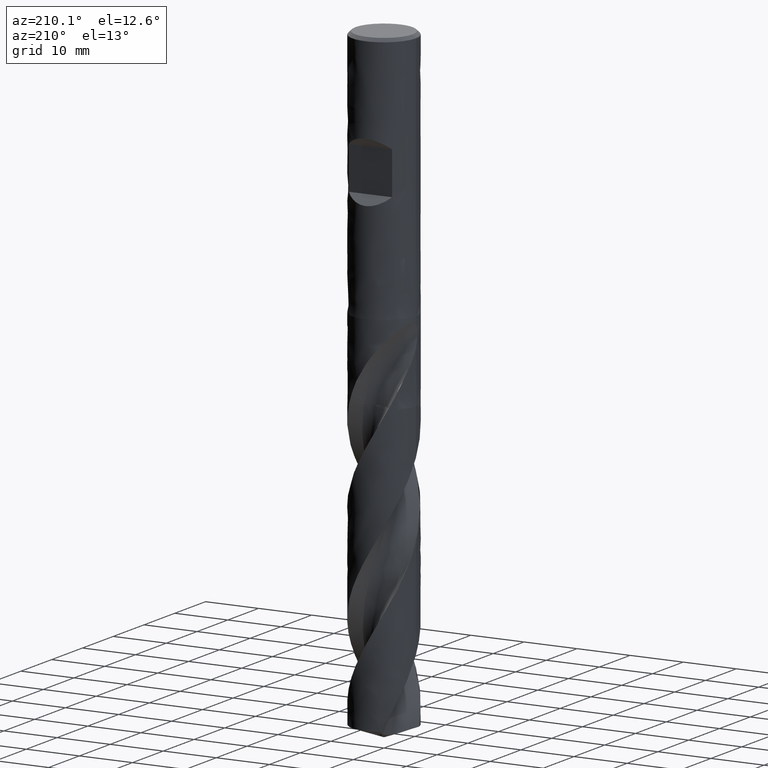
[diagram: clean part render]
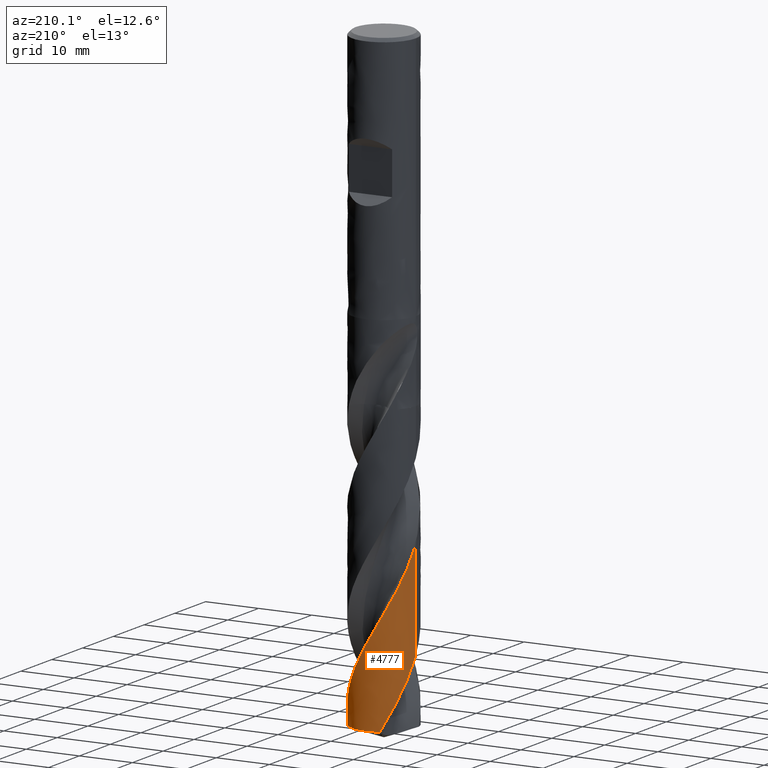
[diagram: same view with one face highlighted and labeled with its STEP entity id]
A machine part, auxiliary view. The second image highlights one B-rep face of the part: STEP entity #4777.
In plain terms, the highlighted face is a freeform B-spline surface patch.
Its self-contained STEP definition (entity closure, byte-faithful):
#2982 = VERTEX_POINT('', #2983);
#2983 = CARTESIAN_POINT('', (-6., 6.71350447278501E-15, -103.6398484438));
#3155 = EDGE_CURVE('', #3156, #2982, #3158, .T.);
#3156 = VERTEX_POINT('', #3157);
#3157 = CARTESIAN_POINT('', (-2.41970738305768, 5.49044772130436, -115.816178594403));
#3158 = B_SPLINE_CURVE_WITH_KNOTS('', 3, (#3159, #3160, #3161, #3162, #3163, #3164, #3165, #3166, #3167, #3168, #3169, #3170, #3171, #3172, #3173, #3174, #3175, #3176, #3177, #3178, #3179, #3180, #3181, #3182, #3183, #3184, #3185, #3186, #3187, #3188, #3189, #3190, #3191, #3192, #3193, #3194, #3195, #3196, #3197, #3198, #3199, #3200, #3201), .UNSPECIFIED., .F., .U., (4, 3, 3, 3, 3, 3, 3, 3, 3, 3, 3, 3, 3, 3, 4), (0., 0.998386598438226, 1.99655942461733, 2.99452180961622, 3.99227632513794, 4.98982435645039, 5.98716637325594, 6.98430280587836, 7.98123346836616, 8.97795719601076, 9.97447172042755, 10.9707741891144, 11.9668615296887, 12.9627296803801, 14.0113734200105), .UNSPECIFIED.);
#3159 = CARTESIAN_POINT('', (-2.41970738305768, 5.49044772130436, -115.816178594403));
#3160 = CARTESIAN_POINT('', (-2.57026605876772, 5.42409467366758, -115.526899793075));
#3161 = CARTESIAN_POINT('', (-2.71813363117782, 5.35152572027249, -115.237567026028));
#3162 = CARTESIAN_POINT('', (-2.86274940129663, 5.27301297792599, -114.94830089427));
#3163 = CARTESIAN_POINT('', (-3.0073342066169, 5.19451704654863, -114.659096699516));
#3164 = CARTESIAN_POINT('', (-3.14872654669029, 5.11004841737186, -114.369838464244));
#3165 = CARTESIAN_POINT('', (-3.28639031778309, 5.01992417066051, -114.08064691921));
#3166 = CARTESIAN_POINT('', (-3.42402506571907, 4.92981892451935, -113.791516343387));
#3167 = CARTESIAN_POINT('', (-3.55798851547286, 4.83402391357219, -113.502332183988));
#3168 = CARTESIAN_POINT('', (-3.68777097717419, 4.73290029684883, -113.213214049184));
#3169 = CARTESIAN_POINT('', (-3.81752640598043, 4.63179774355798, -112.924156135924));
#3170 = CARTESIAN_POINT('', (-3.94315692246598, 4.52532639203362, -112.635045306308));
#3171 = CARTESIAN_POINT('', (-4.06418272478227, 4.41388930305025, -112.345999972186));
#3172 = CARTESIAN_POINT('', (-4.1851834809407, 4.30247527585096, -112.057014455682));
#3173 = CARTESIAN_POINT('', (-4.30163253984435, 4.18605055299722, -111.767975801292));
#3174 = CARTESIAN_POINT('', (-4.41308586949311, 4.06505511752058, -111.479003212451));
#3175 = CARTESIAN_POINT('', (-4.52451618170109, 3.94408467012892, -111.190090302486));
#3176 = CARTESIAN_POINT('', (-4.63099825189566, 3.81849618342117, -110.901123429982));
#3177 = CARTESIAN_POINT('', (-4.73212745795392, 3.68876262745092, -110.61222323735));
#3178 = CARTESIAN_POINT('', (-4.83323581803871, 3.55905581372825, -110.323382596316));
#3179 = CARTESIAN_POINT('', (-4.92903407080675, 3.42515358640969, -110.034488055524));
#3180 = CARTESIAN_POINT('', (-5.01915756167589, 3.28756100644107, -109.745659884721));
#3181 = CARTESIAN_POINT('', (-5.10926245456561, 3.14999682022357, -109.456891316807));
#3182 = CARTESIAN_POINT('', (-5.19373195221956, 3.00868715432848, -109.168069515894));
#3183 = CARTESIAN_POINT('', (-5.27224297427624, 2.86416724724567, -108.8793133926));
#3184 = CARTESIAN_POINT('', (-5.35073769964685, 2.71967733844202, -108.590617206977));
#3185 = CARTESIAN_POINT('', (-5.42330956350154, 2.57191746889187, -108.301868129496));
#3186 = CARTESIAN_POINT('', (-5.48968022563948, 2.42144812461943, -108.013184643839));
#3187 = CARTESIAN_POINT('', (-5.55603695718023, 2.27101036249121, -107.724561750214));
#3188 = CARTESIAN_POINT('', (-5.61622280649487, 2.11780158296675, -107.435885361436));
#3189 = CARTESIAN_POINT('', (-5.67000730707231, 1.96240086061609, -107.147275323825));
#3190 = CARTESIAN_POINT('', (-5.72378036244624, 1.80703320713978, -106.858726701688));
#3191 = CARTESIAN_POINT('', (-5.77117650236832, 1.6494119162326, -106.570124075889));
#3192 = CARTESIAN_POINT('', (-5.81201406481464, 1.49013170907713, -106.28158800246));
#3193 = CARTESIAN_POINT('', (-5.85284280934871, 1.33088589474053, -105.993114231618));
#3194 = CARTESIAN_POINT('', (-5.88713231074071, 1.16991731701636, -105.704586877367));
#3195 = CARTESIAN_POINT('', (-5.91475006511765, 1.00783513889494, -105.416125511832));
#3196 = CARTESIAN_POINT('', (-5.94236174218379, 0.84578862709734, -105.12772762247));
#3197 = CARTESIAN_POINT('', (-5.96331608667615, 0.682561305447174, -104.839276760255));
#3198 = CARTESIAN_POINT('', (-5.97753081388567, 0.518772945563494, -104.55089136884));
#3199 = CARTESIAN_POINT('', (-5.99249884423031, 0.346304694523327, -104.247223122096));
#3200 = CARTESIAN_POINT('', (-6., 0.173141375843114, -103.94350253582));
#3201 = CARTESIAN_POINT('', (-6., 6.46370429224435E-15, -103.6398484438));
#3401 = VERTEX_POINT('', #3402);
#3402 = CARTESIAN_POINT('', (-6., 5.5715519896483E-15, -84.9903491117182));
#3463 = EDGE_CURVE('', #3401, #2982, #3464, .T.);
#3464 = LINE('', #3465, #3466);
#3465 = CARTESIAN_POINT('', (-6., 5.5715519896483E-15, -84.9903491117182));
#3466 = VECTOR('', #3467, 18.6494993320815);
#3467 = DIRECTION('', (0., 1.14195248313672E-15, -18.6494993320815));
#3548 = VERTEX_POINT('', #3549);
#3549 = CARTESIAN_POINT('', (5.86256289667796, 1.27685405685023, -115.816178594403));
#3679 = EDGE_CURVE('', #3680, #3548, #3682, .T.);
#3680 = VERTEX_POINT('', #3681);
#3681 = CARTESIAN_POINT('', (5.51514137768352, 2.36288289683665, -113.80136810681));
#3682 = B_SPLINE_CURVE_WITH_KNOTS('', 3, (#3683, #3684, #3685, #3686, #3687, #3688, #3689, #3690, #3691, #3692), .UNSPECIFIED., .F., .U., (4, 3, 3, 4), (0., 0.996500820096686, 1.99279399936851, 2.3157970283583), .UNSPECIFIED.);
#3683 = CARTESIAN_POINT('', (5.51514137768346, 2.36288289683678, -113.80136810681));
#3684 = CARTESIAN_POINT('', (5.57965687741962, 2.21229900519614, -114.090326785383));
#3685 = CARTESIAN_POINT('', (5.63800703232372, 2.05905433969125, -114.379353144476));
#3686 = CARTESIAN_POINT('', (5.68997642541769, 1.90372484308799, -114.668328585849));
#3687 = CARTESIAN_POINT('', (5.74193498965189, 1.74842771248397, -114.957243813424));
#3688 = CARTESIAN_POINT('', (5.78753683935547, 1.59098246579591, -115.246225226385));
#3689 = CARTESIAN_POINT('', (5.82661352672339, 1.4319828246885, -115.535156059852));
#3690 = CARTESIAN_POINT('', (5.83928237626018, 1.38043437815239, -115.628828822368));
#3691 = CARTESIAN_POINT('', (5.85126702042231, 1.32871807738302, -115.722504397955));
#3692 = CARTESIAN_POINT('', (5.86256289667796, 1.27685405685023, -115.816178594403));
#4169 = EDGE_CURVE('', #3156, #3548, #4170, .T.);
#4170 = CIRCLE('', #4171, 6.);
#4171 = AXIS2_PLACEMENT_3D('', #4172, #4173, #4174);
#4172 = CARTESIAN_POINT('', (4.34241117093671E-31, 7.09169562025568E-15, -115.816178594403));
#4173 = DIRECTION('', (3.74939945665464E-33, 6.12323399573677E-17, -1.));
#4174 = DIRECTION('', (-1., 6.12323399573677E-17, 0.));
#4777 = ADVANCED_FACE('', (#4778), #4893, .T.);
#4778 = FACE_OUTER_BOUND('', #4779, .T.);
#4779 = EDGE_LOOP('', (#4780, #4781, #4782, #4891, #4892));
#4780 = ORIENTED_EDGE('', *, *, #3155, .T.);
#4781 = ORIENTED_EDGE('', *, *, #3463, .F.);
#4782 = ORIENTED_EDGE('', *, *, #4783, .F.);
#4783 = EDGE_CURVE('', #3680, #3401, #4784, .T.);
#4784 = B_SPLINE_CURVE_WITH_KNOTS('', 3, (#4785, #4786, #4787, #4788, #4789, #4790, #4791, #4792, #4793, #4794, #4795, #4796, #4797, #4798, #4799, #4800, #4801, #4802, #4803, #4804, #4805, #4806, #4807, #4808, #4809, #4810, #4811, #4812, #4813, #4814, #4815, #4816, #4817, #4818, #4819, #4820, #4821, #4822, #4823, #4824, #4825, #4826, #4827, #4828, #4829, #4830, #4831, #4832, #4833, #4834, #4835, #4836, #4837, #4838, #4839, #4840, #4841, #4842, #4843, #4844, #4845, #4846, #4847, #4848, #4849, #4850, #4851, #4852, #4853, #4854, #4855, #4856, #4857, #4858, #4859, #4860, #4861, #4862, #4863, #4864, #4865, #4866, #4867, #4868, #4869, #4870, #4871, #4872, #4873, #4874, #4875, #4876, #4877, #4878, #4879, #4880, #4881, #4882, #4883, #4884, #4885, #4886, #4887, #4888, #4889, #4890), .UNSPECIFIED., .F., .U., (4, 3, 3, 3, 3, 3, 3, 3, 3, 3, 3, 3, 3, 3, 3, 3, 3, 3, 3, 3, 3, 3, 3, 3, 3, 3, 3, 3, 3, 3, 3, 3, 3, 3, 3, 4), (0., 0.998408613465588, 1.99660536594195, 2.99459349656701, 3.99237515493531, 4.98995141230597, 5.98732323181776, 6.98449107746847, 7.98145448924341, 8.97821194497288, 9.97476118396742, 10.9710998514381, 11.9672247299029, 12.9631314972255, 13.9588146094928, 14.1557868001342, 14.2871862213407, 15.2867072341169, 16.2859847439121, 17.2850267525409, 18.283840001546, 19.2824299434489, 20.2808008889907, 21.2789567134392, 22.2769005499413, 23.2746346002193, 24.2721600473778, 25.2694774267222, 26.2665869252199, 27.2634879680879, 28.260179060879, 29.2566577550975, 30.2529211740032, 31.248965768797, 32.2447870330251, 33.1598002198008), .UNSPECIFIED.);
#4785 = CARTESIAN_POINT('', (5.51514137768352, 2.36288289683665, -113.80136810681));
#4786 = CARTESIAN_POINT('', (5.45050236350553, 2.51375508021187, -113.511856219008));
#4787 = CARTESIAN_POINT('', (5.37964694820809, 2.66202036082919, -113.222295406501));
#4788 = CARTESIAN_POINT('', (5.30283676130242, 2.80711992671843, -112.932806093718));
#4789 = CARTESIAN_POINT('', (5.22604287341698, 2.95218870267142, -112.643378210185));
#4790 = CARTESIAN_POINT('', (5.1432662359749, 3.09415054826209, -112.353902094675));
#4791 = CARTESIAN_POINT('', (5.05481496004365, 3.232467435214, -112.064496563785));
#4792 = CARTESIAN_POINT('', (4.96638217031653, 3.37075541411252, -111.775151518284));
#4793 = CARTESIAN_POINT('', (4.87224014580771, 3.50545758712352, -111.485759218213));
#4794 = CARTESIAN_POINT('', (4.77274198303639, 3.63606022548609, -111.196436655628));
#4795 = CARTESIAN_POINT('', (4.67326440528966, 3.7666358436661, -110.90717395055));
#4796 = CARTESIAN_POINT('', (4.56839068227131, 3.89316910270324, -110.617863799589));
#4797 = CARTESIAN_POINT('', (4.45851384483617, 4.01517799050108, -110.328624097992));
#4798 = CARTESIAN_POINT('', (4.3486596263897, 4.13716176183474, -110.039443938604));
#4799 = CARTESIAN_POINT('', (4.23376006760547, 4.25467235448738, -109.750215044717));
#4800 = CARTESIAN_POINT('', (4.11424367346409, 4.36726447508744, -109.461057647659));
#4801 = CARTESIAN_POINT('', (3.99475177236327, 4.47983352166995, -109.171959508946));
#4802 = CARTESIAN_POINT('', (3.87059806135677, 4.58753023659417, -108.882812535278));
#4803 = CARTESIAN_POINT('', (3.74224658649825, 4.68994568047885, -108.593736742035));
#4804 = CARTESIAN_POINT('', (3.61392136097362, 4.79234017924245, -108.304720068073));
#4805 = CARTESIAN_POINT('', (3.48134789881908, 4.88949707771137, -108.015655502492));
#4806 = CARTESIAN_POINT('', (3.3450251539547, 4.98104474175955, -107.72666109225));
#4807 = CARTESIAN_POINT('', (3.20873035723085, 5.07257363720837, -107.437725930055));
#4808 = CARTESIAN_POINT('', (3.06862995431805, 5.15853439079298, -107.14874348794));
#4809 = CARTESIAN_POINT('', (2.92525315743776, 5.23859656443408, -106.859830904731));
#4810 = CARTESIAN_POINT('', (2.78190597981705, 5.31864219856282, -106.570978006051));
#4811 = CARTESIAN_POINT('', (2.63522369090791, 5.39282533165957, -106.282077014761));
#4812 = CARTESIAN_POINT('', (2.48575783273242, 5.46086147022698, -105.993247038756));
#4813 = CARTESIAN_POINT('', (2.33632319709035, 5.5288833964476, -105.704477397624));
#4814 = CARTESIAN_POINT('', (2.18404684628983, 5.59078796110891, -105.415658686977));
#4815 = CARTESIAN_POINT('', (2.02949957465498, 5.64633788189084, -105.12691148691));
#4816 = CARTESIAN_POINT('', (1.87498495896249, 5.70187606493717, -104.838225299319));
#4817 = CARTESIAN_POINT('', (1.71813889237881, 5.75108431594591, -104.549490554642));
#4818 = CARTESIAN_POINT('', (1.55955201321177, 5.79377230464639, -104.260826548363));
#4819 = CARTESIAN_POINT('', (1.40099916276645, 5.83645113358728, -103.972224482058));
#4820 = CARTESIAN_POINT('', (1.24064016225728, 5.87263018866352, -103.68357479763));
#4821 = CARTESIAN_POINT('', (1.07908245444259, 5.90216748800939, -103.394995005385));
#4822 = CARTESIAN_POINT('', (0.917560121245014, 5.93169831987891, -103.106478400465));
#4823 = CARTESIAN_POINT('', (0.754770850689165, 5.95460289410767, -102.817914128768));
#4824 = CARTESIAN_POINT('', (0.591330783423463, 5.9707895545378, -102.529420278049));
#4825 = CARTESIAN_POINT('', (0.427927420594859, 5.98697257986014, -102.240991215631));
#4826 = CARTESIAN_POINT('', (0.263806887256553, 5.99644740776733, -101.95251332009));
#4827 = CARTESIAN_POINT('', (0.0995870455179495, 5.9991734781025, -101.664106861322));
#4828 = CARTESIAN_POINT('', (0.0671000608784442, 5.99971276619441, -101.607052512123));
#4829 = CARTESIAN_POINT('', (0.0346076570942096, 5.99998817526606, -101.549998143849));
#4830 = CARTESIAN_POINT('', (0.00211468660957173, 5.99999962734171, -101.492944655761));
#4831 = CARTESIAN_POINT('', (-0.0195612540450756, 6.00000726697909, -101.454884484484));
#4832 = CARTESIAN_POINT('', (-0.0412376413132209, 5.99989744338441, -101.416824362708));
#4833 = CARTESIAN_POINT('', (-0.0629130313014613, 5.99967015347448, -101.378764555728));
#4834 = CARTESIAN_POINT('', (-0.227792050968746, 5.99794121860641, -101.089253563439));
#4835 = CARTESIAN_POINT('', (-0.392653225966067, 5.9894093827061, -100.799693260554));
#4836 = CARTESIAN_POINT('', (-0.556869539612291, 5.97410213470212, -100.510205116602));
#4837 = CARTESIAN_POINT('', (-0.721045846934075, 5.95879861584488, -100.220787497656));
#4838 = CARTESIAN_POINT('', (-0.884643257609252, 5.93671688221208, -99.931320104176));
#4839 = CARTESIAN_POINT('', (-1.04703996721215, 5.90793595996611, -99.641924902149));
#4840 = CARTESIAN_POINT('', (-1.20939840454918, 5.87916182056143, -99.3525979023051));
#4841 = CARTESIAN_POINT('', (-1.37062288553923, 5.84367983406463, -99.0632218577027));
#4842 = CARTESIAN_POINT('', (-1.53009740028079, 5.80162063096633, -98.7739171244293));
#4843 = CARTESIAN_POINT('', (-1.68953539871006, 5.75957105854161, -98.4846786358598));
#4844 = CARTESIAN_POINT('', (-1.84729206594488, 5.71092931638854, -98.195391861309));
#4845 = CARTESIAN_POINT('', (-2.002761923263, 5.6558770035007, -97.9061758322487));
#4846 = CARTESIAN_POINT('', (-2.15819702180779, 5.60083699879206, -97.6170244639179));
#4847 = CARTESIAN_POINT('', (-2.3114128042674, 5.53936580827793, -97.3278243841295));
#4848 = CARTESIAN_POINT('', (-2.46182276125493, 5.47169340261013, -97.0386959072621));
#4849 = CARTESIAN_POINT('', (-2.61219973249739, 5.4040358378795, -96.7496308378873));
#4850 = CARTESIAN_POINT('', (-2.7598334262099, 5.33015227539098, -96.4605159883616));
#4851 = CARTESIAN_POINT('', (-2.90416102117657, 5.25031892013035, -96.1714734748848));
#4852 = CARTESIAN_POINT('', (-3.04845751757194, 5.17050276673116, -95.8824932420081));
#4853 = CARTESIAN_POINT('', (-3.18950734949943, 5.08470725089169, -95.5934634061077));
#4854 = CARTESIAN_POINT('', (-3.32677130658489, 4.99325471748474, -95.3045054291844));
#4855 = CARTESIAN_POINT('', (-3.46400611160444, 4.90182160673131, -95.0156088210439));
#4856 = CARTESIAN_POINT('', (-3.59751380954174, 4.80469568786336, -94.7266634704639));
#4857 = CARTESIAN_POINT('', (-3.7267810267735, 4.70224448306138, -94.4377891157184));
#4858 = CARTESIAN_POINT('', (-3.85602106964893, 4.59981481539467, -94.1489754876971));
#4859 = CARTESIAN_POINT('', (-3.98107796075659, 4.49201804948097, -93.8601134296643));
#4860 = CARTESIAN_POINT('', (-4.10146983882279, 4.37926308426737, -93.5713224139679));
#4861 = CARTESIAN_POINT('', (-4.22183654573109, 4.26653169350979, -93.2825917777953));
#4862 = CARTESIAN_POINT('', (-4.33759085599668, 4.14879683902502, -92.9938118180507));
#4863 = CARTESIAN_POINT('', (-4.44828847061104, 4.02650340645938, -92.7051039287772));
#4864 = CARTESIAN_POINT('', (-4.55896299547789, 3.90423548234293, -92.4164562593404));
#4865 = CARTESIAN_POINT('', (-4.66462765240526, 3.77736152031418, -92.1277586801109));
#4866 = CARTESIAN_POINT('', (-4.76487713555877, 3.6463606353499, -91.839133348479));
#4867 = CARTESIAN_POINT('', (-4.8651057227088, 3.51538705621167, -91.5505681779147));
#4868 = CARTESIAN_POINT('', (-4.95996232088289, 3.38023466959691, -91.261953700589));
#4869 = CARTESIAN_POINT('', (-5.04908104661536, 3.2414164472819, -90.9734107061249));
#4870 = CARTESIAN_POINT('', (-5.13818114119435, 3.10262724629303, -90.6849280344356));
#4871 = CARTESIAN_POINT('', (-5.22158360726838, 2.96011465746742, -90.3963967966862));
#4872 = CARTESIAN_POINT('', (-5.29896479693152, 2.81442215754506, -90.1079364562877));
#4873 = CARTESIAN_POINT('', (-5.3763296899052, 2.66876034086028, -89.8195368664231));
#4874 = CARTESIAN_POINT('', (-5.44770906743826, 2.51985748205953, -89.5310884110908));
#4875 = CARTESIAN_POINT('', (-5.51282578804565, 2.36828035305346, -89.2427115715243));
#4876 = CARTESIAN_POINT('', (-5.57792863203808, 2.2167355256964, -88.954396186133));
#4877 = CARTESIAN_POINT('', (-5.63679833477652, 2.06245526281878, -88.6660309367004));
#4878 = CARTESIAN_POINT('', (-5.68920647997657, 1.90602456127743, -88.3777380329031));
#4879 = CARTESIAN_POINT('', (-5.74160330312838, 1.74962765440563, -88.0895074107636));
#4880 = CARTESIAN_POINT('', (-5.78756255742267, 1.59101786851063, -87.8012270197476));
#4881 = CARTESIAN_POINT('', (-5.82690459738477, 1.43079796371702, -87.5130185932678));
#4882 = CARTESIAN_POINT('', (-5.86623799607108, 1.27061325039761, -87.2248734702796));
#4883 = CARTESIAN_POINT('', (-5.89897344482628, 1.10875215368129, -86.9366793637787));
#4884 = CARTESIAN_POINT('', (-5.92498100585988, 0.945833008622987, -86.6485564221759));
#4885 = CARTESIAN_POINT('', (-5.95098273554481, 0.782950392877723, -86.3604980827604));
#4886 = CARTESIAN_POINT('', (-5.97027076149835, 0.618940091800231, -86.0723910920056));
#4887 = CARTESIAN_POINT('', (-5.98276638595951, 0.454429720677635, -85.7843552599849));
#4888 = CARTESIAN_POINT('', (-5.99424802585784, 0.303268900612993, -85.5196927206013));
#4889 = CARTESIAN_POINT('', (-6., 0.151629695246233, -85.2549924884536));
#4890 = CARTESIAN_POINT('', (-6., 4.72500693337161E-15, -84.9903491117182));
#4891 = ORIENTED_EDGE('', *, *, #3679, .T.);
#4892 = ORIENTED_EDGE('', *, *, #4169, .F.);
#4893 = (
   BOUNDED_SURFACE ()
   B_SPLINE_SURFACE (2, 1, ((#4894, #4895), (#4896, #4897), (#4898, #4899), (#4900, #4901), (#4902, #4903)), .UNSPECIFIED., .F., .F., .U.)
   B_SPLINE_SURFACE_WITH_KNOTS ((3, 2, 3), (2, 2), (0., 9.42477796076938, 17.4761302961837), (0.552055488806351, 1.), .UNSPECIFIED.)
   GEOMETRIC_REPRESENTATION_ITEM ()
   RATIONAL_B_SPLINE_SURFACE (((1., 1.), (0.707106781186548, 0.707106781186548), (1., 1.), (0.749788641054818, 0.749788641054818), (0.927075907027061, 0.927075907027061)))
   REPRESENTATION_ITEM ('')
   SURFACE ()
);
#4894 = CARTESIAN_POINT('', (-6., 5.5715519896483E-15, -84.9903491117182));
#4895 = CARTESIAN_POINT('', (-6., 7.45908965999989E-15, -115.816178594403));
#4896 = CARTESIAN_POINT('', (-6., 6.00000000000001, -84.9903491117182));
#4897 = CARTESIAN_POINT('', (-6., 6.00000000000001, -115.816178594403));
#4898 = CARTESIAN_POINT('', (3.45126646034193E-31, 6.00000000000001, -84.9903491117182));
#4899 = CARTESIAN_POINT('', (4.43734259186819E-31, 6.00000000000001, -115.816178594403));
#4900 = CARTESIAN_POINT('', (4.83387149244181, 6.00000000000001, -84.9903491117182));
#4901 = CARTESIAN_POINT('', (4.83387149244181, 6.00000000000001, -115.816178594403));
#4902 = CARTESIAN_POINT('', (5.86256289667796, 1.27685405685023, -84.9903491117182));
#4903 = CARTESIAN_POINT('', (5.86256289667796, 1.27685405685023, -115.816178594403));